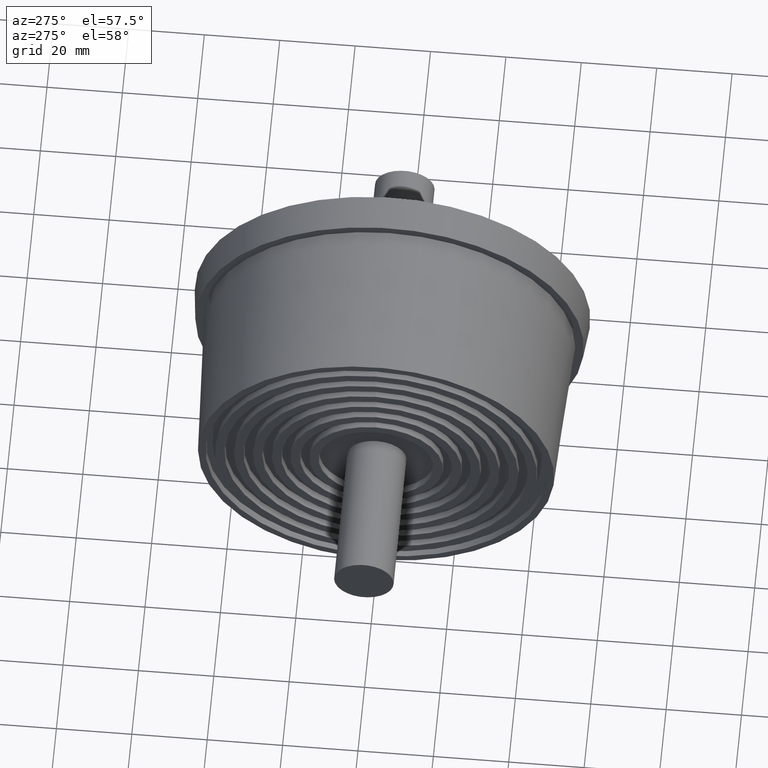
[diagram: clean part render]
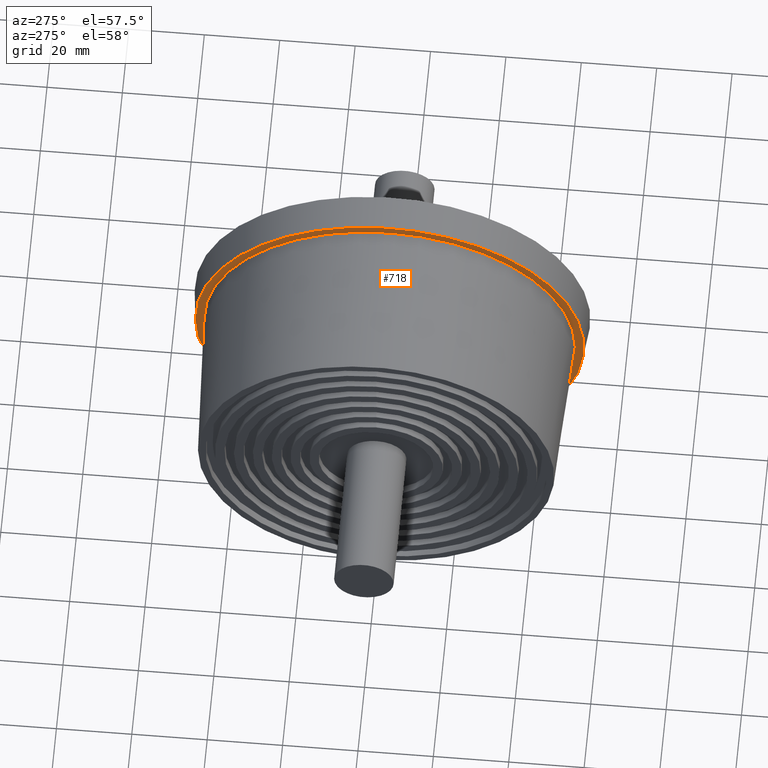
[diagram: same view with one face highlighted and labeled with its STEP entity id]
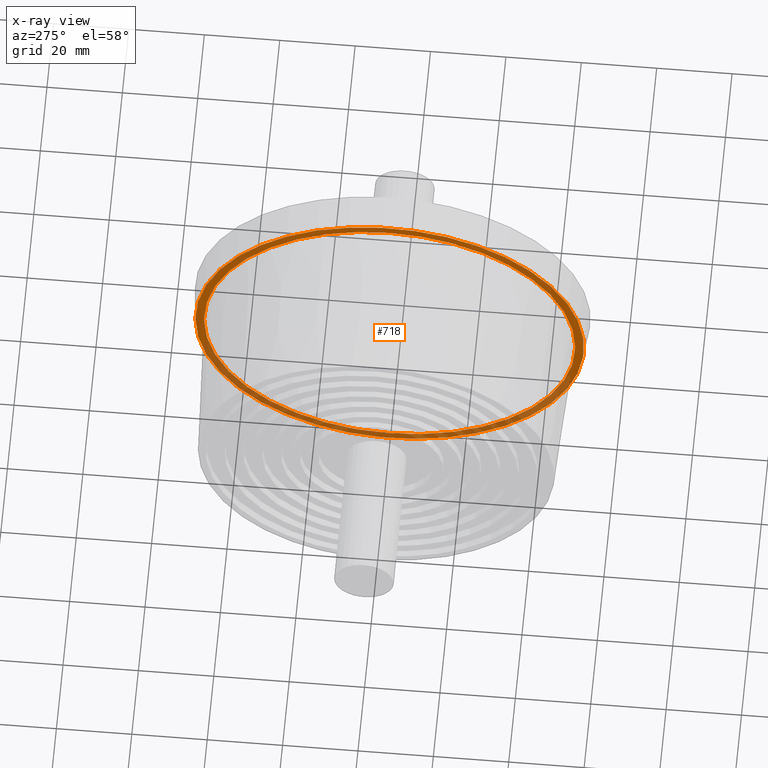
[diagram: x-ray of the same camera — body ghosted, the highlighted face saturated]
A machine part, auxiliary view. The second image highlights one B-rep face of the part: STEP entity #718.
The next image is the same camera in x-ray: the body ghosted, the highlighted face saturated — about 41% of this face is hidden behind the body in this view.
In plain terms, the highlighted planar face has unit normal (-1, -0, 0).
Its self-contained STEP definition (entity closure, byte-faithful):
#48=PLANE('',#848);
#110=FACE_BOUND('',#301,.T.);
#175=FACE_OUTER_BOUND('',#300,.T.);
#300=EDGE_LOOP('',(#620));
#301=EDGE_LOOP('',(#621));
#366=CIRCLE('',#841,49.25);
#369=CIRCLE('',#849,51.555);
#430=VERTEX_POINT('',#1291);
#433=VERTEX_POINT('',#1302);
#494=EDGE_CURVE('',#430,#430,#366,.T.);
#497=EDGE_CURVE('',#433,#433,#369,.T.);
#620=ORIENTED_EDGE('',*,*,#497,.F.);
#621=ORIENTED_EDGE('',*,*,#494,.T.);
#718=ADVANCED_FACE('',(#175,#110),#48,.T.);
#841=AXIS2_PLACEMENT_3D('',#1292,#1090,#1091);
#848=AXIS2_PLACEMENT_3D('',#1301,#1104,#1105);
#849=AXIS2_PLACEMENT_3D('',#1303,#1106,#1107);
#1090=DIRECTION('center_axis',(1.,2.40506373542991E-32,0.));
#1091=DIRECTION('ref_axis',(0.,1.,0.));
#1104=DIRECTION('center_axis',(-1.,-2.40506373542991E-32,0.));
#1105=DIRECTION('ref_axis',(0.,0.,1.));
#1106=DIRECTION('center_axis',(1.,2.40506373542991E-32,0.));
#1107=DIRECTION('ref_axis',(0.,0.,-1.));
#1291=CARTESIAN_POINT('',(16.,49.25,0.));
#1292=CARTESIAN_POINT('Origin',(16.,9.86076131526265E-31,0.));
#1301=CARTESIAN_POINT('Origin',(16.,51.555,0.));
#1302=CARTESIAN_POINT('',(16.,51.555,0.));
#1303=CARTESIAN_POINT('Origin',(16.,9.86076131526265E-31,0.));